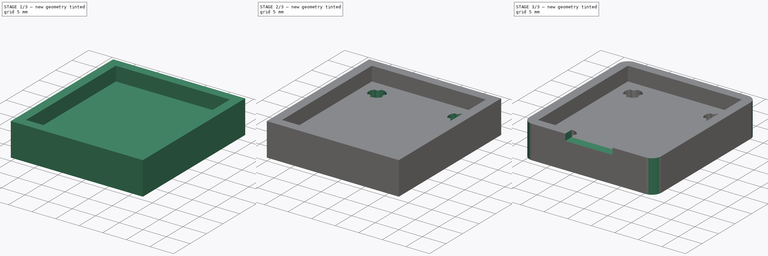
[diagram: build sequence overview — one tinted view per stage of 3, left to right]
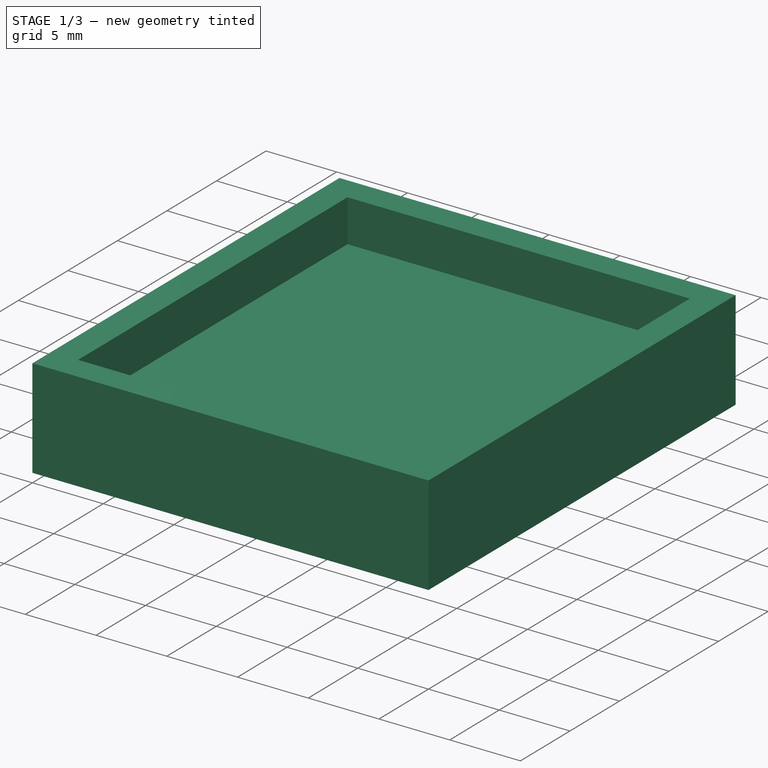
[diagram: stage 1 of 3 — iso view after this stage's code; geometry added in this stage tinted green]
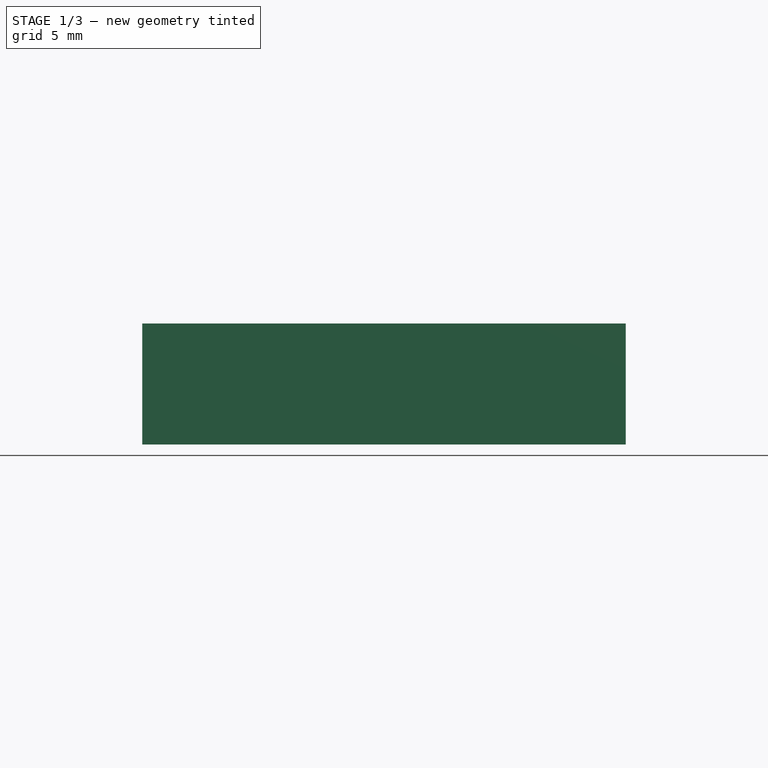
[diagram: stage 1 of 3 — front view after this stage's code; geometry added in this stage tinted green]
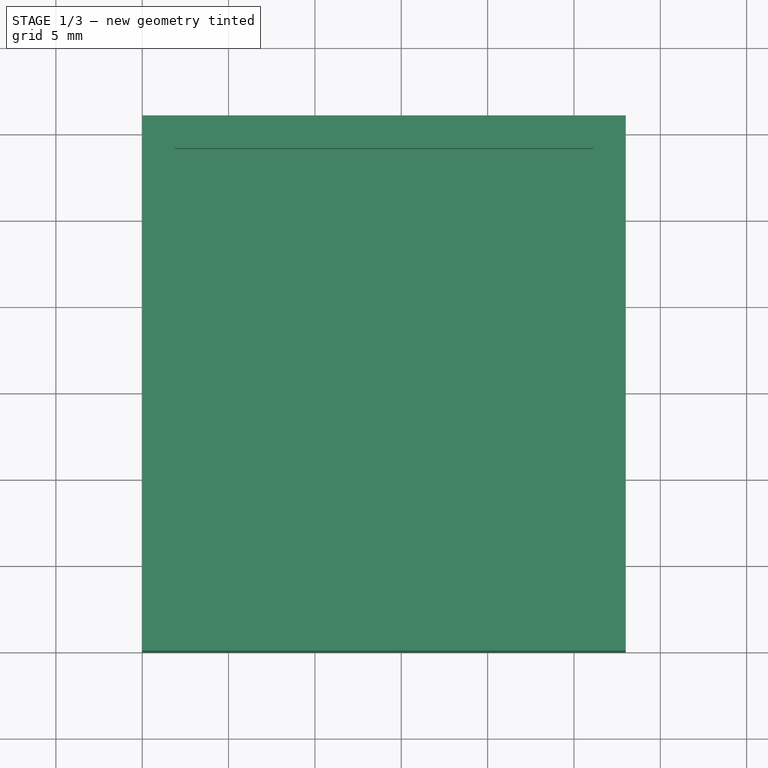
[diagram: stage 1 of 3 — top view after this stage's code; geometry added in this stage tinted green]
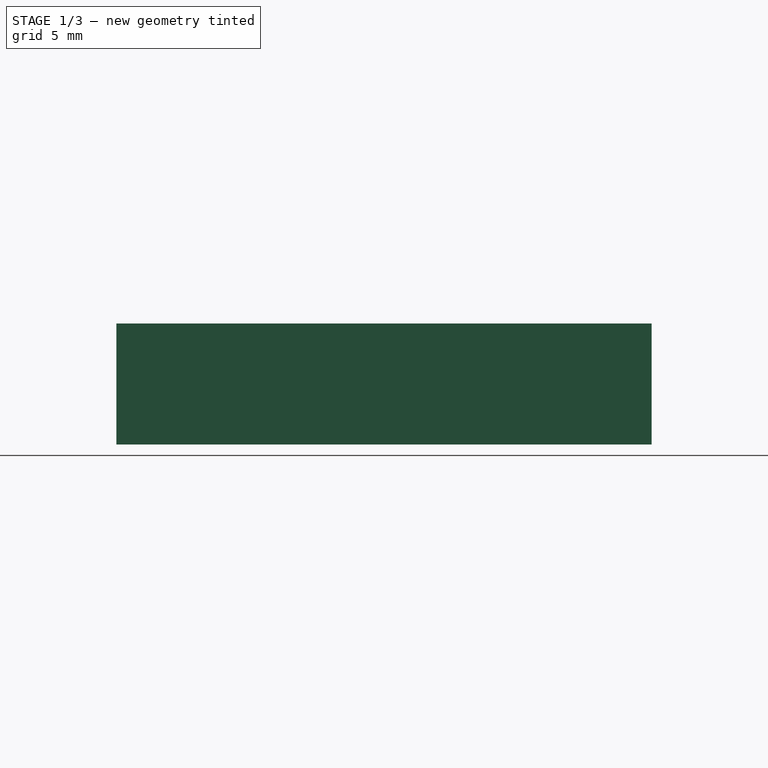
[diagram: stage 1 of 3 — right view after this stage's code; geometry added in this stage tinted green]
FCSTD DOCUMENT  (FreeCAD 1.0R39285 (Git))
Label: usb-stand-bottom
License: All rights reserved
LicenseURL: https://en.wikipedia.org/wiki/All_rights_reserved
objects: Sketcher::SketchObject×6, PartDesign::SubShapeBinder×5, PartDesign::Pocket×4, PartDesign::Pad×1, PartDesign::Hole×1, App::VarSet×1, PartDesign::Fillet×1, PartDesign::Body×1
note: 39 computed .brp shape members not serialized (recipe doc carries the construction recipe); baked Part::Feature solids carry a one-line shape summary decoded from their .brp

FEATURE [Sketcher::SketchObject] Sketch
  ArcFitTolerance = 1e-06
  AttachmentSupport = -> [XY_Plane]
  FullyConstrained = true
  MakeInternals = false
  MapMode = 5
  sketch-geometry (4):
    g0: LineSegment StartX=0 StartY=0 StartZ=0 EndX=28 EndY=0 EndZ=0
    g1: LineSegment StartX=28 StartY=0 StartZ=0 EndX=28 EndY=31 EndZ=0
    g2: LineSegment StartX=28 StartY=31 StartZ=0 EndX=0 EndY=31 EndZ=0
    g3: LineSegment StartX=0 StartY=31 StartZ=0 EndX=0 EndY=0 EndZ=0
  constraints (11):
    c: Coincident(g0,g1)
    c: Coincident(g1,g2)
    c: Coincident(g2,g3)
    c: Coincident(g3,g0)
    c: Horizontal(g0)
    c: Horizontal(g2)
    c: Vertical(g1)
    c: Vertical(g3)
    c: Distance(g1,g3) = 28
    c: Distance(g0,g2) = 31
    c: Coincident(g0,g-1)
FEATURE [PartDesign::Pad] Pad
  Direction = (0,0,1)
  Length = 7
  Length2 = 10
  Profile = -> Sketch
  ReferenceAxis = -> Sketch [N_Axis]
  Refine = true
  Suppressed = false
  Type = 0
FEATURE [Sketcher::SketchObject] Sketch001
  ArcFitTolerance = 1e-06
  AttachmentSupport = -> [Pad]
  ExternalGeometry = -> [Pad]
  FullyConstrained = true
  MakeInternals = false
  MapMode = 5
  Placement = pos=(0,0,7) rot=(0,0,1;0rad)
  sketch-geometry (4):
    g0: LineSegment StartX=1.9 StartY=29.1 StartZ=0 EndX=1.9 EndY=1.9 EndZ=0
    g1: LineSegment StartX=1.9 StartY=1.9 StartZ=0 EndX=26.1 EndY=1.9 EndZ=0
    g2: LineSegment StartX=26.1 StartY=1.9 StartZ=0 EndX=26.1 EndY=29.1 EndZ=0
    g3: LineSegment StartX=26.1 StartY=29.1 StartZ=0 EndX=1.9 EndY=29.1 EndZ=0
  constraints (12):
    c: Coincident(g0,g1)
    c: Coincident(g1,g2)
    c: Coincident(g2,g3)
    c: Coincident(g3,g0)
    c: Vertical(g0)
    c: Vertical(g2)
    c: Horizontal(g1)
    c: Horizontal(g3)
    c: Distance(g-2,g0) = 1.9
    c: Distance(g-3,g3) = 1.9
    c: Distance(g-4,g2) = 1.9
    c: Distance(g-1,g1) = 1.9
FEATURE [PartDesign::Pocket] Pocket
  BaseFeature = -> Pad
  Direction = (0,0,-1)
  Length = 3
  Length2 = 5
  Profile = -> Sketch001
  ReferenceAxis = -> Sketch001 [N_Axis]
  Refine = true
  Suppressed = false
  Type = 0
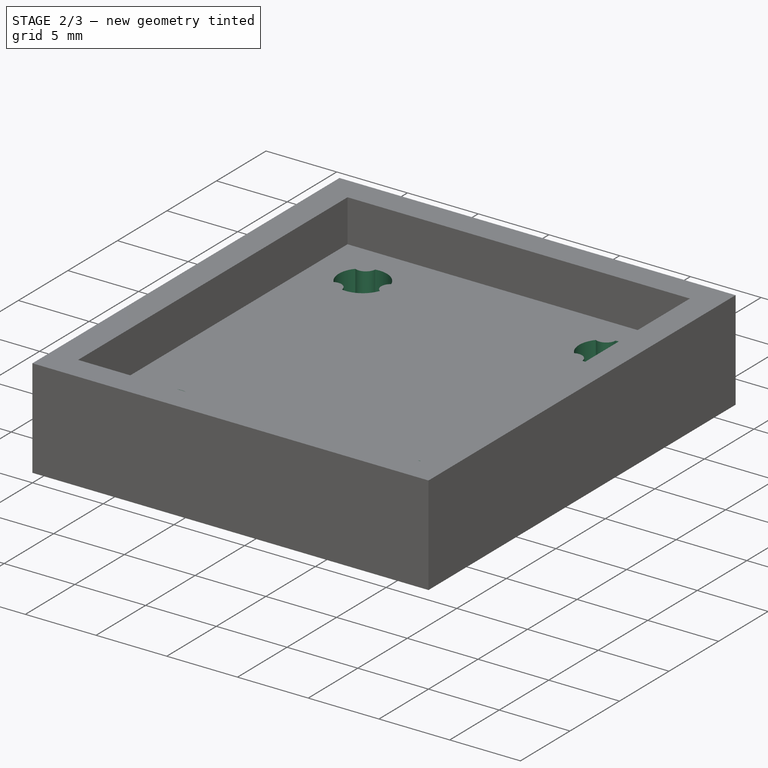
[diagram: stage 2 of 3 — iso view after this stage's code; geometry added in this stage tinted green]
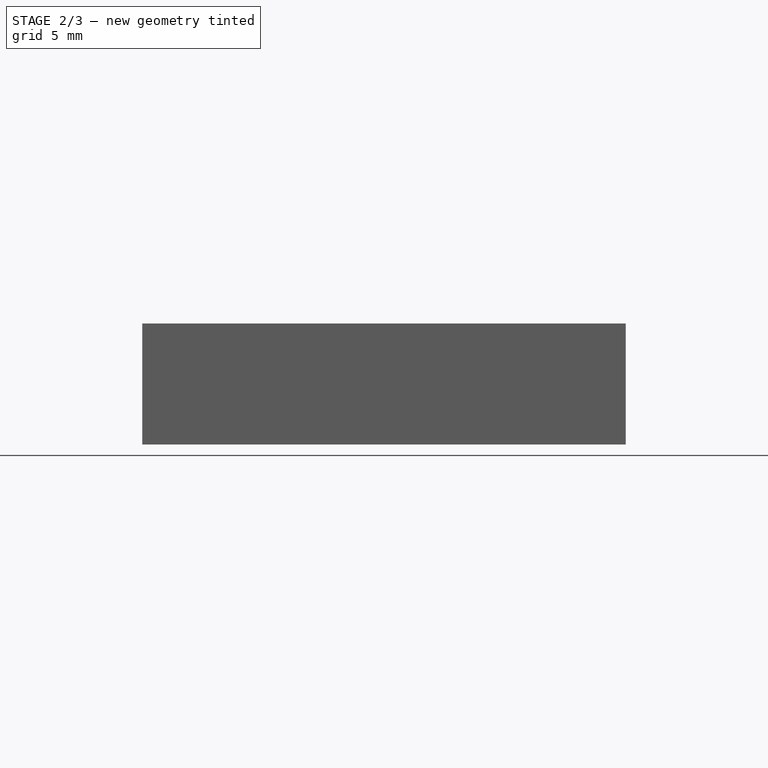
[diagram: stage 2 of 3 — front view after this stage's code; geometry added in this stage tinted green]
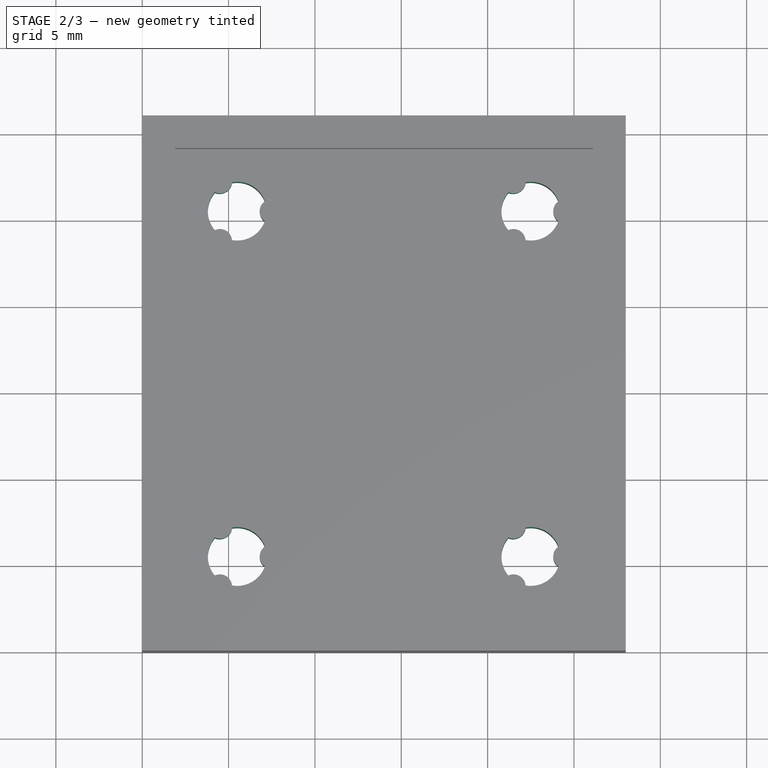
[diagram: stage 2 of 3 — top view after this stage's code; geometry added in this stage tinted green]
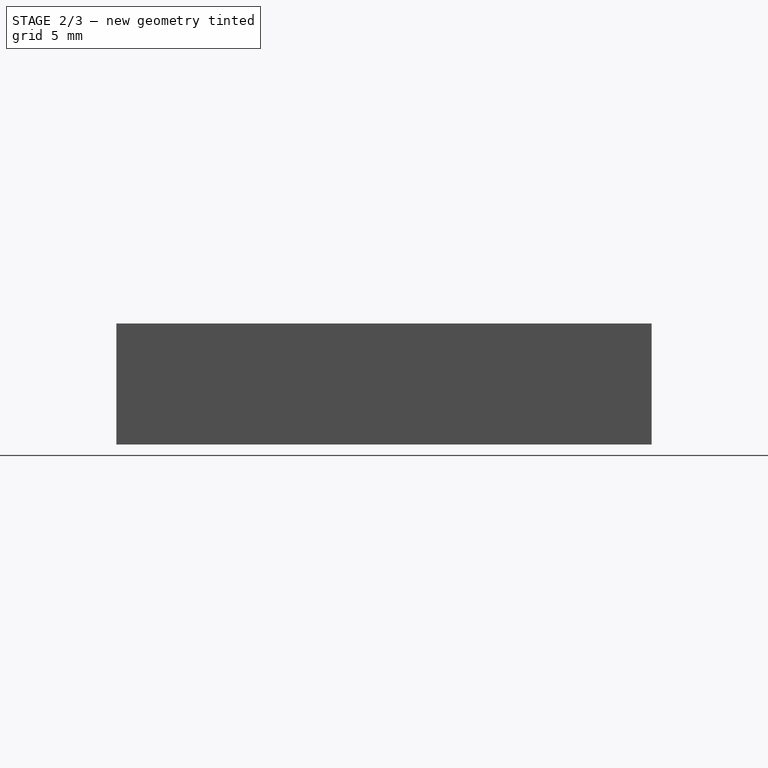
[diagram: stage 2 of 3 — right view after this stage's code; geometry added in this stage tinted green]
FEATURE [Sketcher::SketchObject] Sketch002
  ArcFitTolerance = 1e-06
  AttachmentSupport = -> [Pocket]
  ExternalGeometry = -> [Pocket]
  FullyConstrained = true
  MakeInternals = false
  MapMode = 5
  Placement = pos=(0,0,0) rot=(1,0,0;3.14159rad)
  sketch-geometry (4):
    g0: Circle CenterX=5.5 CenterY=-5.5 CenterZ=0 NormalX=0 NormalY=0 NormalZ=1 AngleXU=0 Radius=1.5
    g1: Circle CenterX=22.5 CenterY=-5.5 CenterZ=0 NormalX=0 NormalY=0 NormalZ=1 AngleXU=0 Radius=1.5
    g2: Circle CenterX=5.5 CenterY=-25.5 CenterZ=0 NormalX=0 NormalY=0 NormalZ=1 AngleXU=0 Radius=1.5
    g3: Circle CenterX=22.5 CenterY=-25.5 CenterZ=0 NormalX=0 NormalY=0 NormalZ=1 AngleXU=0 Radius=1.5
  constraints (12):
    c: Diameter(g0) = 3
    c: Diameter(g1) = 3
    c: Diameter(g2) = 3
    c: Diameter(g3) = 3
    c: Distance(g0,g-2) = 5.5
    c: Distance(g0,g-1) = 5.5
    c: Distance(g1,g-1) = 5.5
    c: Distance(g1,g-3) = 5.5
    c: Distance(g3,g-3) = 5.5
    c: Distance(g3,g-4) = 5.5
    c: Distance(g2,g-4) = 5.5
    c: Distance(g2,g-2) = 5.5
FEATURE [PartDesign::Hole] Hole
  BaseFeature = -> Pocket
  CustomThreadClearance = 0
  Depth = 86.766
  DepthType = 1
  Diameter = 2.5
  DrillForDepth = false
  DrillPoint = 1
  DrillPointAngle = 118
  HoleCutCountersinkAngle = 90
  HoleCutCustomValues = false
  HoleCutDepth = 0
  HoleCutDiameter = 6.1
  HoleCutType = 0
  ModelThread = false
  Profile = -> Sketch002
  Refine = true
  Suppressed = false
  Tapered = false
  TaperedAngle = 90
  ThreadClass = 0
  ThreadDepth = 86.766
  ThreadDepthType = 0
  ThreadDirection = 0
  ThreadFit = 1
  ThreadSize = 9
  ThreadType = 1
  Threaded = true
  UseCustomThreadClearance = false
FEATURE [Sketcher::SketchObject] RibThread_M3_Template
  ArcFitTolerance = 1e-06
  EntranceDepth = 0.6
  FullyConstrained = true
  MakeInternals = false
  OuterDiameter = 3.4
  RibDiameter = 1.4
  RibEngagement = 0.2
  sketch-geometry (12):
    g0: Circle [constr] CenterX=0 CenterY=0 CenterZ=0 NormalX=0 NormalY=0 NormalZ=1 AngleXU=0 Radius=2
    g1: Circle [constr] CenterX=0 CenterY=0 CenterZ=0 NormalX=0 NormalY=0 NormalZ=1 AngleXU=0 Radius=1.5
    g2: Circle [constr] CenterX=0 CenterY=0 CenterZ=0 NormalX=0 NormalY=0 NormalZ=1 AngleXU=0 Radius=1.195
    g3: ArcOfCircle CenterX=2 CenterY=0 CenterZ=0 NormalX=0 NormalY=0 NormalZ=1 AngleXU=0 Radius=0.7 StartAngle=2.17904 EndAngle=4.10414
    g4: ArcOfCircle CenterX=-1 CenterY=1.73205 CenterZ=0 NormalX=0 NormalY=0 NormalZ=1 AngleXU=0 Radius=0.7 StartAngle=4.27344 EndAngle=6.19854
    g5: ArcOfCircle CenterX=-1 CenterY=-1.73205 CenterZ=0 NormalX=0 NormalY=0 NormalZ=1 AngleXU=0 Radius=0.7 StartAngle=0.0846468 EndAngle=2.00975
    g6: ArcOfCircle CenterX=0 CenterY=0 CenterZ=0 NormalX=0 NormalY=0 NormalZ=1 AngleXU=0 Radius=1.7 StartAngle=4.53349 EndAngle=5.93848
    g7: ArcOfCircle CenterX=0 CenterY=0 CenterZ=0 NormalX=0 NormalY=0 NormalZ=1 AngleXU=0 Radius=1.7 StartAngle=0.344701 EndAngle=1.74969
    g8: ArcOfCircle CenterX=0 CenterY=0 CenterZ=0 NormalX=0 NormalY=0 NormalZ=1 AngleXU=0 Radius=1.7 StartAngle=2.4391 EndAngle=3.84409
    g9: LineSegment [constr] StartX=2 StartY=0 StartZ=0 EndX=-1 EndY=1.73205 EndZ=0
    g10: LineSegment [constr] StartX=-1 StartY=1.73205 StartZ=0 EndX=-1 EndY=-1.73205 EndZ=0
    g11: LineSegment [constr] StartX=-1 StartY=-1.73205 StartZ=0 EndX=2 EndY=0 EndZ=0
  constraints (33):
    c: Coincident(g6,g3)
    c: Coincident(g7,g3)
    c: Coincident(g7,g4)
    c: Coincident(g8,g4)
    c: Coincident(g8,g5)
    c: Coincident(g6,g5)
    c: Coincident(g0,g-1)
    c: Coincident(g1,g-1)
    c: Coincident(g2,g-1)
    c: Coincident(g6,g-1)
    c: Coincident(g7,g-1)
    c: Coincident(g8,g-1)
    c: PointOnObject(g3,g0)
    c: PointOnObject(g4,g0)
    c: PointOnObject(g5,g0)
    c: Equal(g6,g7)
    c: Equal(g6,g8)
    c: Equal(g3,g4)
    c: Equal(g3,g5)
    c: Diameter(g0) = 4
    c: Diameter(g6) = 3.4  'outer_diameter'
    c: Diameter(g3) = 1.4  'rib_diameter'
    c: Diameter(g1) = 3  'normative_diameter'
    c: Diameter(g2) = 2.39  'core_diameter'
    c: Coincident(g9,g3)
    c: Coincident(g9,g4)
    c: Coincident(g10,g4)
    c: Coincident(g10,g5)
    c: Coincident(g11,g5)
    c: Coincident(g11,g3)
    c: Equal(g9,g10)
    c: Equal(g9,g11)
    c: PointOnObject(g3,g-1)
FEATURE [App::VarSet] Hole_RibThread_Settings  label="Hole_RibThread"
  EntranceDepth = 0.6
  EntranceDiameter = 3.4
  Rotation = 0
FEATURE [Sketcher::SketchObject] Sketch002_ThreadEntrance
  ArcFitTolerance = 1e-06
  AttachmentOffset = pos=(0,0,-0.6) rot=(0,0,1;0rad)
  AttachmentSupport = -> [Sketch002]
  FullyConstrained = true
  MakeInternals = false
  MapMode = 2
  Placement = pos=(0,0,0.6) rot=(1,0,0;3.14159rad)
  expr: .AttachmentOffset.Base.z = -Hole_RibThread_Settings.EntranceDepth
  expr: Constraints[0] = Sketch002.Geometry[0].Center.x * 1 mm
  expr: Constraints[10] = Sketch002.Geometry[3].Center.y * 1 mm
  expr: Constraints[11] = Hole_RibThread_Settings.EntranceDiameter
  expr: Constraints[1] = Sketch002.Geometry[0].Center.y * 1 mm
  expr: Constraints[2] = Hole_RibThread_Settings.EntranceDiameter
  expr: Constraints[3] = Sketch002.Geometry[1].Center.x * 1 mm
  expr: Constraints[4] = Sketch002.Geometry[1].Center.y * 1 mm
  expr: Constraints[5] = Hole_RibThread_Settings.EntranceDiameter
  expr: Constraints[6] = Sketch002.Geometry[2].Center.x * 1 mm
  expr: Constraints[7] = Sketch002.Geometry[2].Center.y * 1 mm
  expr: Constraints[8] = Hole_RibThread_Settings.EntranceDiameter
  expr: Constraints[9] = Sketch002.Geometry[3].Center.x * 1 mm
  sketch-geometry (4):
    g0: Circle CenterX=5.5 CenterY=-5.5 CenterZ=0 NormalX=0 NormalY=0 NormalZ=1 AngleXU=0 Radius=1.7
    g1: Circle CenterX=22.5 CenterY=-5.5 CenterZ=0 NormalX=0 NormalY=0 NormalZ=1 AngleXU=0 Radius=1.7
    g2: Circle CenterX=5.5 CenterY=-25.5 CenterZ=0 NormalX=0 NormalY=0 NormalZ=1 AngleXU=0 Radius=1.7
    g3: Circle CenterX=22.5 CenterY=-25.5 CenterZ=0 NormalX=0 NormalY=0 NormalZ=1 AngleXU=0 Radius=1.7
  constraints (12):
    c: DistanceX(g0) = 5.5
    c: DistanceY(g0) = -5.5
    c: Diameter(g0) = 3.4
    c: DistanceX(g1) = 22.5
    c: DistanceY(g1) = -5.5
    c: Diameter(g1) = 3.4
    c: DistanceX(g2) = 5.5
    c: DistanceY(g2) = -25.5
    c: Diameter(g2) = 3.4
    c: DistanceX(g3) = 22.5
    c: DistanceY(g3) = -25.5
    c: Diameter(g3) = 3.4
FEATURE [PartDesign::SubShapeBinder] Sketch002_RibThread001
  BindCopyOnChange = 0
  BindMode = 0
  ClaimChildren = false
  Context = -> Body [Sketch002_RibThread001.]
  Fuse = false
  MakeFace = true
  OffsetFill = false
  OffsetIntersection = false
  OffsetJoinType = 0
  OffsetOpenResult = false
  PartialLoad = false
  Placement = pos=(5.5,5.5,0) rot=(1,0,0;3.14159rad)
  Refine = true
  Relative = false
  Support = -> [RibThread_M3_Template]
  _Version = 2
  expr: Placement = Sketch002.Placement * placement(Sketch002.Geometry[0].Center; rotation(Hole_RibThread_Settings.Rotation; 0; 0))
FEATURE [PartDesign::SubShapeBinder] Sketch002_RibThread002
  BindCopyOnChange = 0
  BindMode = 0
  ClaimChildren = false
  Context = -> Body [Sketch002_RibThread002.]
  Fuse = false
  MakeFace = true
  OffsetFill = false
  OffsetIntersection = false
  OffsetJoinType = 0
  OffsetOpenResult = false
  PartialLoad = false
  Placement = pos=(22.5,5.5,0) rot=(1,0,0;3.14159rad)
  Refine = true
  Relative = false
  Support = -> [RibThread_M3_Template]
  _Version = 2
  expr: Placement = Sketch002.Placement * placement(Sketch002.Geometry[1].Center; rotation(Hole_RibThread_Settings.Rotation; 0; 0))
FEATURE [PartDesign::SubShapeBinder] Sketch002_RibThread003
  BindCopyOnChange = 0
  BindMode = 0
  ClaimChildren = false
  Context = -> Body [Sketch002_RibThread003.]
  Fuse = false
  MakeFace = true
  OffsetFill = false
  OffsetIntersection = false
  OffsetJoinType = 0
  OffsetOpenResult = false
  PartialLoad = false
  Placement = pos=(5.5,25.5,0) rot=(1,0,0;3.14159rad)
  Refine = true
  Relative = false
  Support = -> [RibThread_M3_Template]
  _Version = 2
  expr: Placement = Sketch002.Placement * placement(Sketch002.Geometry[2].Center; rotation(Hole_RibThread_Settings.Rotation; 0; 0))
FEATURE [PartDesign::SubShapeBinder] Sketch002_RibThread004
  BindCopyOnChange = 0
  BindMode = 0
  ClaimChildren = false
  Context = -> Body [Sketch002_RibThread004.]
  Fuse = false
  MakeFace = true
  OffsetFill = false
  OffsetIntersection = false
  OffsetJoinType = 0
  OffsetOpenResult = false
  PartialLoad = false
  Placement = pos=(22.5,25.5,0) rot=(1,0,0;3.14159rad)
  Refine = true
  Relative = false
  Support = -> [RibThread_M3_Template]
  _Version = 2
  expr: Placement = Sketch002.Placement * placement(Sketch002.Geometry[3].Center; rotation(Hole_RibThread_Settings.Rotation; 0; 0))
FEATURE [PartDesign::SubShapeBinder] Hole_RibThreads
  BindCopyOnChange = 0
  BindMode = 0
  ClaimChildren = false
  Context = -> Body [Hole_RibThreads.]
  Fuse = false
  MakeFace = true
  OffsetFill = false
  OffsetIntersection = false
  OffsetJoinType = 0
  OffsetOpenResult = false
  PartialLoad = false
  Refine = true
  Relative = true
  Support = -> [Sketch002_RibThread003,Sketch002_RibThread004,Sketch002_RibThread002,Sketch002_RibThread001]
  _Version = 2
FEATURE [PartDesign::Pocket] Hole_ThreadRibs
  BaseFeature = -> Hole
  Direction = (0,0,1)
  Length = 86.766
  Length2 = 5
  Profile = -> Hole_RibThreads
  Refine = true
  Suppressed = false
  Type = 1
  expr: Length = Hole.Depth
  expr: Type = Hole.DepthType
FEATURE [PartDesign::Pocket] Hole_ThreadEntrance
  BaseFeature = -> Hole_ThreadRibs
  Direction = (0,0,1)
  Length = 2.52
  Length2 = 0.6
  Profile = -> Sketch002_ThreadEntrance
  ReferenceAxis = -> Sketch002_ThreadEntrance [N_Axis]
  Refine = true
  Suppressed = false
  TaperAngle = -20
  Type = 4
  expr: Length = (Hole_RibThread_Settings.EntranceDiameter - Hole.Diameter) * 2.8
  expr: Length2 = Hole_RibThread_Settings.EntranceDepth
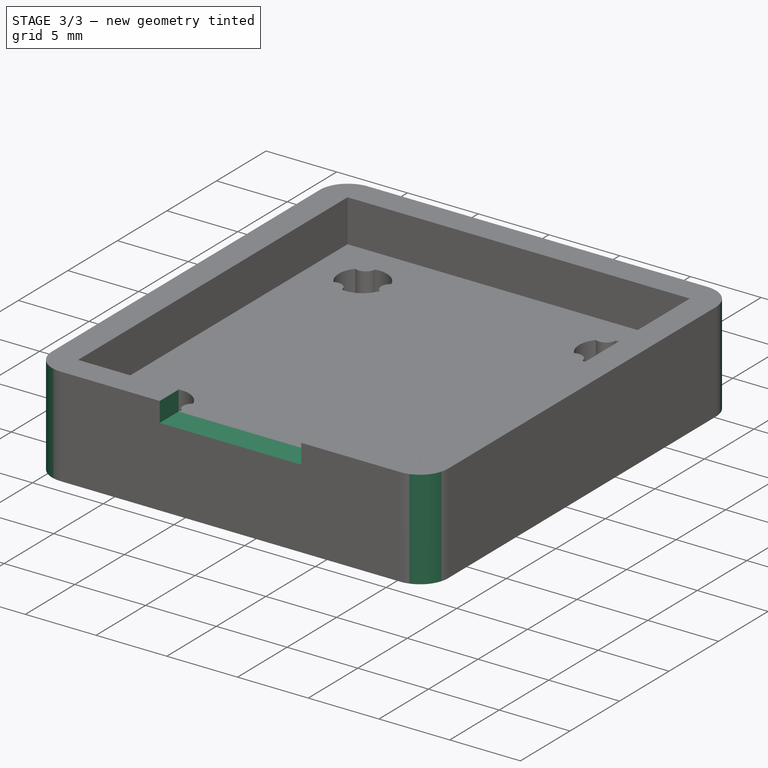
[diagram: stage 3 of 3 — iso view after this stage's code; geometry added in this stage tinted green]
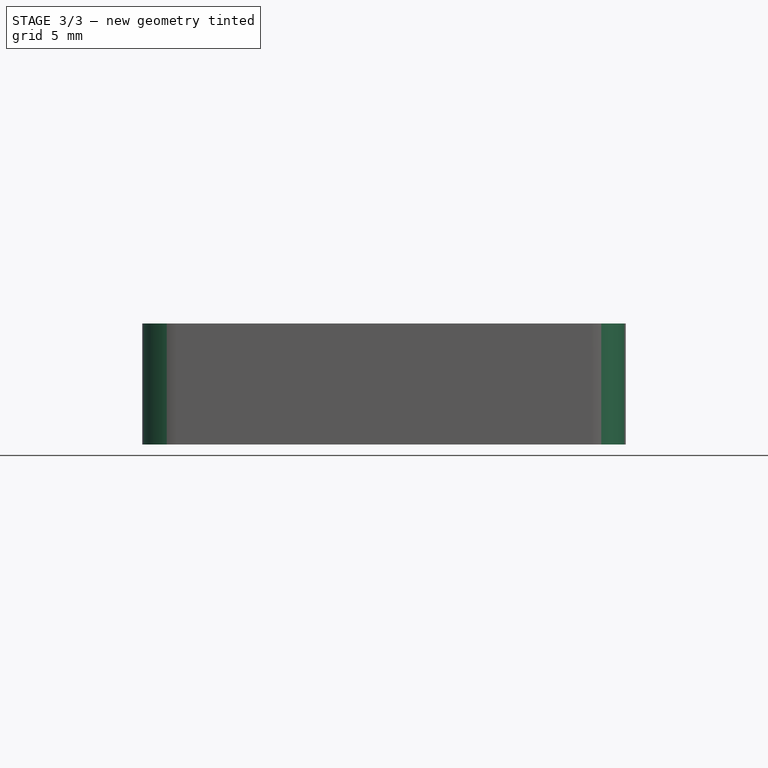
[diagram: stage 3 of 3 — front view after this stage's code; geometry added in this stage tinted green]
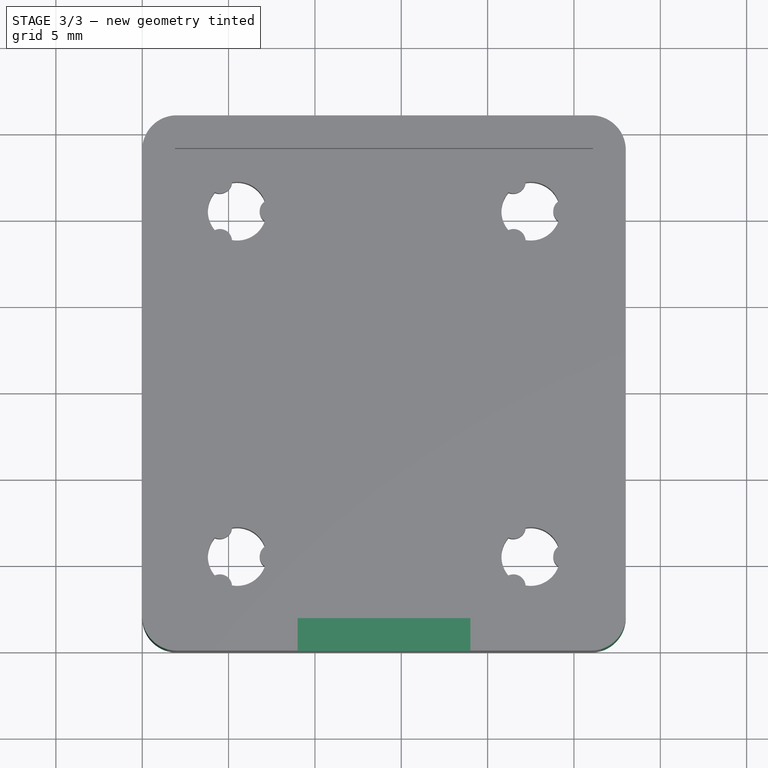
[diagram: stage 3 of 3 — top view after this stage's code; geometry added in this stage tinted green]
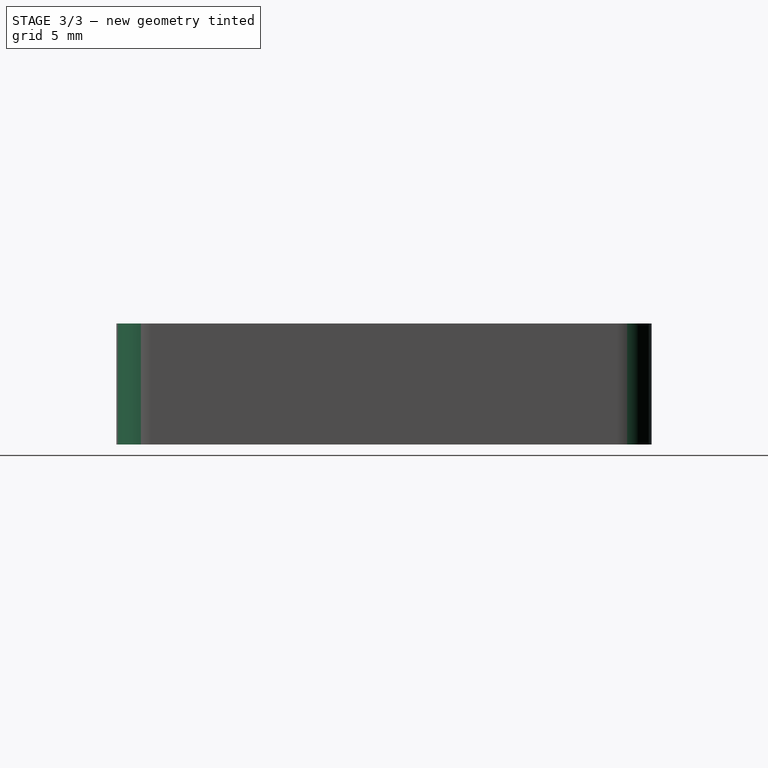
[diagram: stage 3 of 3 — right view after this stage's code; geometry added in this stage tinted green]
FEATURE [Sketcher::SketchObject] Sketch003
  ArcFitTolerance = 1e-06
  AttachmentSupport = -> [Hole_ThreadEntrance]
  ExternalGeometry = -> [Hole_ThreadEntrance]
  FullyConstrained = true
  MakeInternals = false
  MapMode = 5
  Placement = pos=(0,0,7) rot=(0,0,1;0rad)
  sketch-geometry (4):
    g0: LineSegment StartX=9 StartY=7 StartZ=0 EndX=9 EndY=-7 EndZ=0
    g1: LineSegment StartX=9 StartY=-7 StartZ=0 EndX=19 EndY=-7 EndZ=0
    g2: LineSegment StartX=19 StartY=-7 StartZ=0 EndX=19 EndY=7 EndZ=0
    g3: LineSegment StartX=19 StartY=7 StartZ=0 EndX=9 EndY=7 EndZ=0
  constraints (12):
    c: Coincident(g0,g1)
    c: Coincident(g1,g2)
    c: Coincident(g2,g3)
    c: Coincident(g3,g0)
    c: Vertical(g0)
    c: Vertical(g2)
    c: Horizontal(g1)
    c: Horizontal(g3)
    c: Distance(g0,g2) = 10
    c: Distance(g1,g3) = 14
    c: Distance(g-2,g0) = 9
    c: Distance(g-1,g3) = 7
FEATURE [PartDesign::Pocket] Pocket001
  BaseFeature = -> Hole_ThreadEntrance
  Direction = (0,0,-1)
  Length = 1.4
  Length2 = 5
  Profile = -> Sketch003
  ReferenceAxis = -> Sketch003 [N_Axis]
  Refine = true
  Suppressed = false
  Type = 0
FEATURE [PartDesign::Fillet] Fillet
  Base = -> Pocket001 [Edge141,Edge140,Edge143,Edge134]
  BaseFeature = -> Pocket001
  Radius = 2
  Refine = true
  SupportTransform = false
  Suppressed = false
  UseAllEdges = false
FEATURE [PartDesign::Body] Body  label="몸통"
  AllowCompound = false
  Group = -> [Sketch,Pad,Sketch001,Pocket,Sketch002,Hole,Hole_RibThread_Settings,Sketch002_ThreadEntrance,Sketch002_RibThread001,Sketch002_RibThread002,Sketch002_RibThread003,Sketch002_RibThread004,Hole_RibThreads,Hole_ThreadRibs,Hole_ThreadEntrance,Sketch003,Pocket001,Fillet]
  Origin = -> Origin
  Tip = -> Fillet
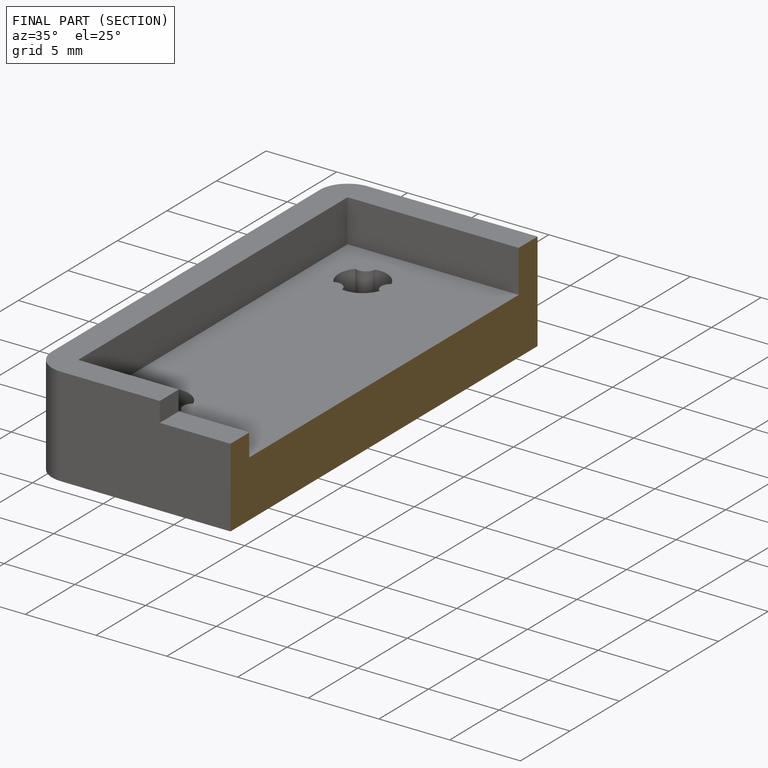
[diagram: finished part — half-section view (interior)]
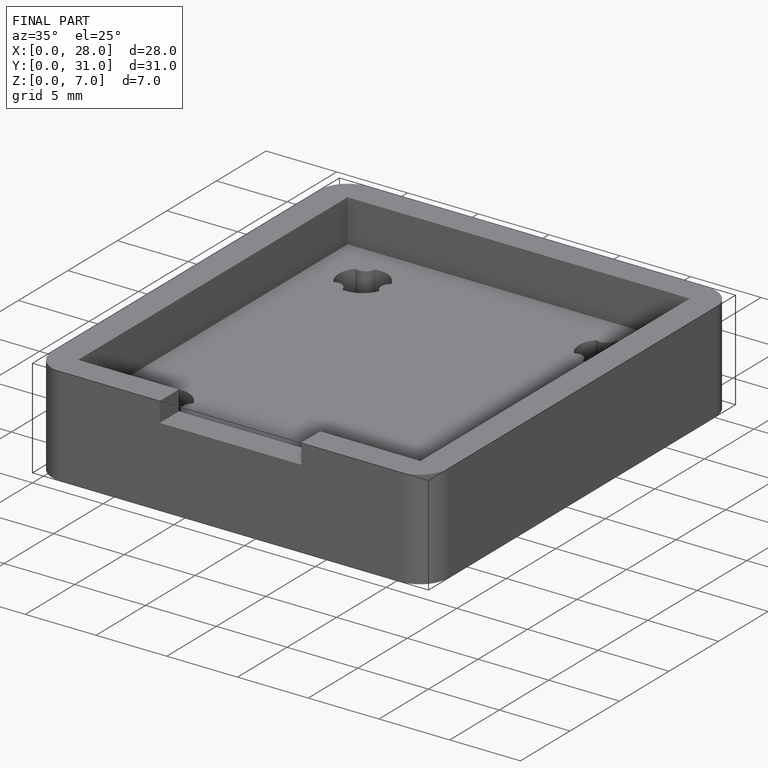
[diagram: finished part — iso view with bounding-box wireframe]
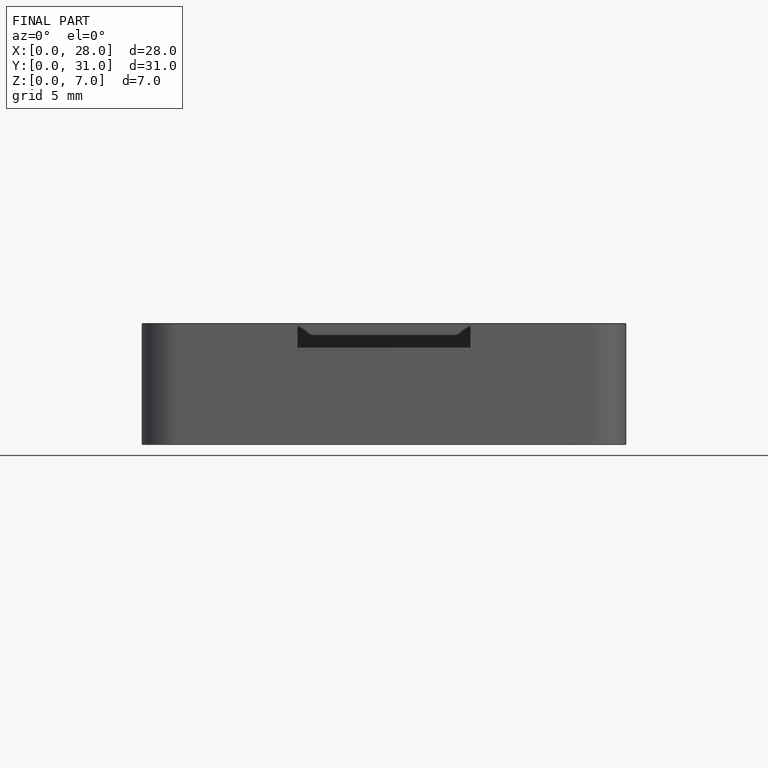
[diagram: finished part — front view with bounding-box wireframe]
